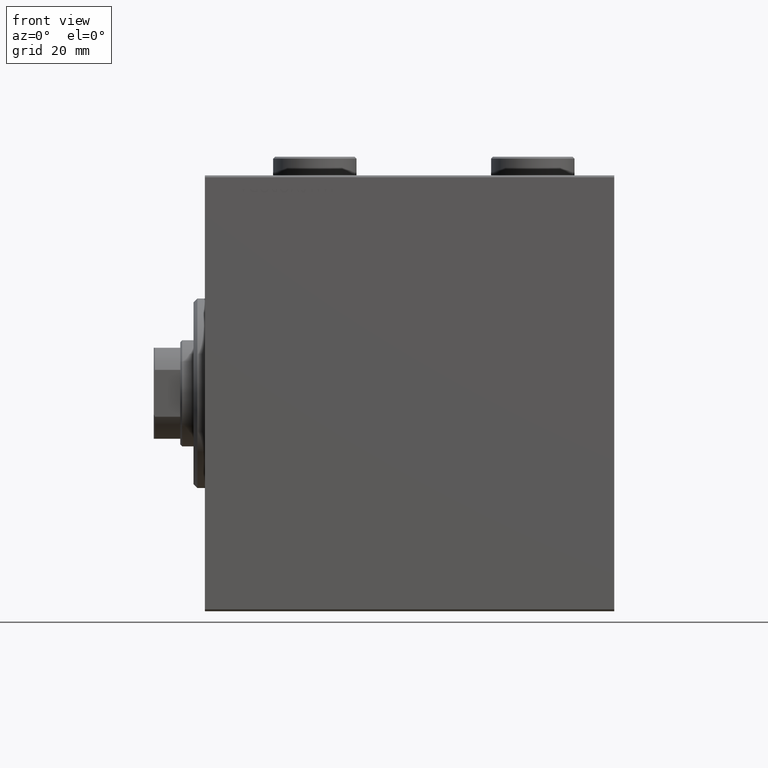
[diagram: clean part render]
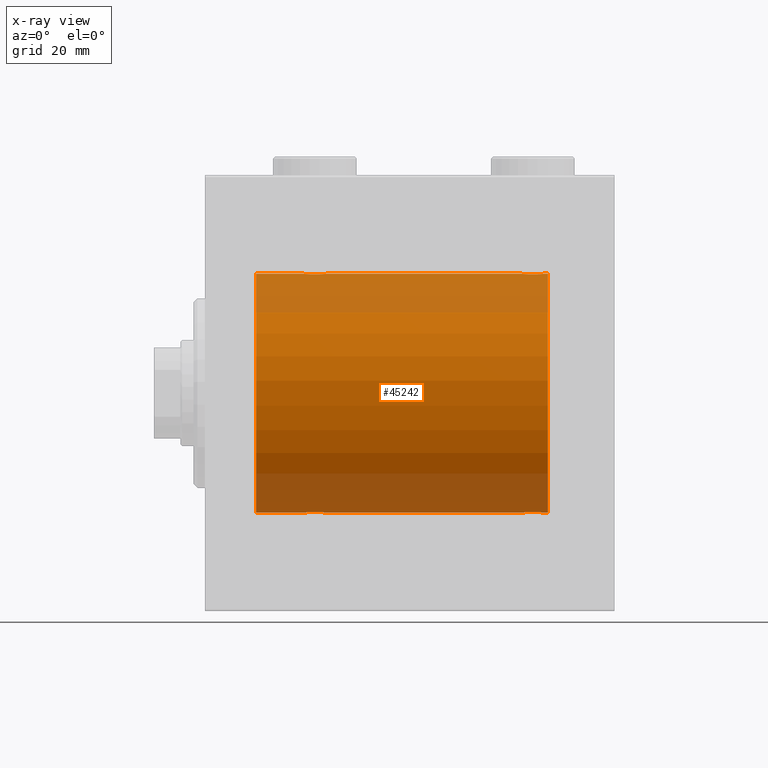
[diagram: x-ray — body ghosted, one internal face saturated and labeled with its STEP entity id]
A machine part, front view, then the same camera in x-ray: the body is ghosted and one INTERNAL B-rep face — a face not visible from any outside direction — is saturated and labeled: STEP entity #45242.
In plain terms, the highlighted cylindrical surface (partial cylindrical patch) has radius 31.5 mm, axis along (-1, -0, -0).
Its self-contained STEP definition (entity closure, byte-faithful):
#99 = CARTESIAN_POINT ( 'NONE',  ( 90.50000000000000000, 0.000000000000000000, 31.50000000000000000 ) ) ;
#245 = CARTESIAN_POINT ( 'NONE',  ( 85.53055544341479788, -2.845838211243349569, 31.37127560316188024 ) ) ;
#400 = DIRECTION ( 'NONE',  ( -1.000000000000000000, 0.000000000000000000, 0.000000000000000000 ) ) ;
#410 = CARTESIAN_POINT ( 'NONE',  ( 28.79953541025904684, -2.999845816735297266, 31.35683219171744796 ) ) ;
#607 = EDGE_CURVE ( 'NONE', #28324, #24776, #33156, .T. ) ;
#697 = CARTESIAN_POINT ( 'NONE',  ( 85.16760041900836598, -2.695056442718549494, 31.38458855656185875 ) ) ;
#1091 = CARTESIAN_POINT ( 'NONE',  ( 90.50000000000000000, 3.857637417314162689E-15, -31.50000000000000000 ) ) ;
#1279 = EDGE_CURVE ( 'NONE', #19880, #32705, #34566, .T. ) ;
#2487 = CARTESIAN_POINT ( 'NONE',  ( 26.61753127733370050, -1.833765390051043775, -31.44700610425689291 ) ) ;
#2577 = FACE_OUTER_BOUND ( 'NONE', #24533, .T. ) ;
#2593 = CARTESIAN_POINT ( 'NONE',  ( 84.11753127733369695, -1.833765390051052657, -31.44700610425689291 ) ) ;
#2927 = CARTESIAN_POINT ( 'NONE',  ( 31.60417781274729165, -1.502389880412994261, -31.46458023642406587 ) ) ;
#3104 = CARTESIAN_POINT ( 'NONE',  ( 89.50000000000000000, -2.415502498297804861E-16, 31.50000000000000000 ) ) ;
#3267 = CARTESIAN_POINT ( 'NONE',  ( 84.51539640075337445, -2.258226318633800300, 31.41925597582826413 ) ) ;
#3268 = CARTESIAN_POINT ( 'NONE',  ( 88.33043691486999194, -2.384935707362452195, -31.40977595730572247 ) ) ;
#3428 = CARTESIAN_POINT ( 'NONE',  ( 26.09580549261944427, -0.7775502215293862429, 31.49099686045558144 ) ) ;
#3619 = VERTEX_POINT ( 'NONE', #10336 ) ;
#3656 = ORIENTED_EDGE ( 'NONE', *, *, #37421, .T. ) ;
#3944 = CARTESIAN_POINT ( 'NONE',  ( 88.48143462873041187, -2.261012035264784892, 31.41905495618427935 ) ) ;
#4180 = DIRECTION ( 'NONE',  ( -1.000000000000000000, -0.000000000000000000, -0.000000000000000000 ) ) ;
#4393 = CARTESIAN_POINT ( 'NONE',  ( 84.99543714992996968, -2.602826974226406076, 31.39247100434484850 ) ) ;
#4624 = CARTESIAN_POINT ( 'NONE',  ( 86.29953541025901131, -2.999845816735307036, 31.35683219171744796 ) ) ;
#4912 = VECTOR ( 'NONE', #43780, 1000.000000000000000 ) ;
#5475 = CARTESIAN_POINT ( 'NONE',  ( 32.00000000000000000, 3.857637396137448068E-15, -31.50000000000000000 ) ) ;
#5568 = EDGE_CURVE ( 'NONE', #44420, #24776, #27446, .T. ) ;
#5670 = ORIENTED_EDGE ( 'NONE', *, *, #5568, .T. ) ;
#5723 = CARTESIAN_POINT ( 'NONE',  ( 31.69714238836700915, -1.328004386210300591, -31.47251238182141009 ) ) ;
#5952 = CARTESIAN_POINT ( 'NONE',  ( 27.17295774629732819, -2.387531469909772941, -31.40957782495775419 ) ) ;
#6060 = CARTESIAN_POINT ( 'NONE',  ( 89.50000000000001421, -0.1958045626907434222, -31.50000000000000711 ) ) ;
#6505 = CARTESIAN_POINT ( 'NONE',  ( 84.24175498096732895, -1.984587626072091160, -31.43772577203671048 ) ) ;
#6615 = CARTESIAN_POINT ( 'NONE',  ( 28.03484270189360217, -2.847307171789032143, -31.37114183851420179 ) ) ;
#6736 = VERTEX_POINT ( 'NONE', #30920 ) ;
#6952 = CARTESIAN_POINT ( 'NONE',  ( 83.49999999999998579, -0.1958045626907495562, 31.50000000000000000 ) ) ;
#6953 = CARTESIAN_POINT ( 'NONE',  ( 89.34660463742501690, -0.9669616078781998469, -31.48567319468627446 ) ) ;
#7115 = CARTESIAN_POINT ( 'NONE',  ( 26.01898490608483527, -0.3904857149112033743, 31.49817436802766935 ) ) ;
#7181 = CARTESIAN_POINT ( 'NONE',  ( 87.27469094434374597, -2.904836261170115730, 31.36579955910872997 ) ) ;
#7344 = CARTESIAN_POINT ( 'NONE',  ( 29.39114547339941552, -2.980809450819701834, 31.35867074198615967 ) ) ;
#7403 = CARTESIAN_POINT ( 'NONE',  ( 88.75824501903265684, -1.984587626072075617, 31.43772577203671759 ) ) ;
#7664 = ORIENTED_EDGE ( 'NONE', *, *, #8530, .T. ) ;
#7695 = EDGE_CURVE ( 'NONE', #44606, #19187, #30831, .T. ) ;
#8258 = LINE ( 'NONE', #1091, #27496 ) ;
#8530 = EDGE_CURVE ( 'NONE', #13277, #3619, #15373, .T. ) ;
#9269 = CARTESIAN_POINT ( 'NONE',  ( 31.38246872266631371, -1.833765390051040223, 31.44700610425690712 ) ) ;
#9742 = CARTESIAN_POINT ( 'NONE',  ( 84.23904537543867832, -1.981494824113344322, 31.43792153503156683 ) ) ;
#9743 = CARTESIAN_POINT ( 'NONE',  ( 88.76095462456133589, -1.981494824113334774, -31.43792153503157394 ) ) ;
#9865 = CARTESIAN_POINT ( 'NONE',  ( 31.98101509391517538, -0.3904857149112004322, -31.49817436802766224 ) ) ;
#9971 = CARTESIAN_POINT ( 'NONE',  ( 83.59580549261943361, -0.7775502215293907948, 31.49099686045558855 ) ) ;
#10087 = CARTESIAN_POINT ( 'NONE',  ( 28.60885452660059869, -2.980809450819697393, -31.35867074198615256 ) ) ;
#10336 = CARTESIAN_POINT ( 'NONE',  ( 13.49999999999999822, 0.000000000000000000, 31.50000000000000000 ) ) ;
#10418 = CARTESIAN_POINT ( 'NONE',  ( 87.27881912642318696, -2.903733559410696774, -31.36590199989303684 ) ) ;
#10578 = LINE ( 'NONE', #34610, #19980 ) ;
#10685 = DIRECTION ( 'NONE',  ( -1.000000000000000000, -0.000000000000000000, -0.000000000000000000 ) ) ;
#10812 = CARTESIAN_POINT ( 'NONE',  ( 27.49543714993000876, -2.602826974226395862, 31.39247100434485560 ) ) ;
#10873 = CARTESIAN_POINT ( 'NONE',  ( 87.82865414687509542, -2.696917666262913738, 31.38442820068732075 ) ) ;
#10900 = AXIS2_PLACEMENT_3D ( 'NONE', #35516, #400, #14507 ) ;
#10913 = ORIENTED_EDGE ( 'NONE', *, *, #607, .F. ) ;
#12892 = CARTESIAN_POINT ( 'NONE',  ( 29.39534111000096672, -2.980257240990050516, -31.35872356503798741 ) ) ;
#13010 = DIRECTION ( 'NONE',  ( 0.000000000000000000, 0.000000000000000000, 1.000000000000000000 ) ) ;
#13116 = CARTESIAN_POINT ( 'NONE',  ( 30.33239958099164824, -2.695056442718528178, -31.38458855656186230 ) ) ;
#13186 = CARTESIAN_POINT ( 'NONE',  ( 32.00000000000000000, -3.906065418435112189E-16, 31.50000000000000000 ) ) ;
#13277 = VERTEX_POINT ( 'NONE', #19376 ) ;
#13442 = CARTESIAN_POINT ( 'NONE',  ( 85.53484270189359506, -2.847307171789053903, -31.37114183851420179 ) ) ;
#13563 = CARTESIAN_POINT ( 'NONE',  ( 28.80417705560560648, -3.000152387858482150, -31.35680286115500337 ) ) ;
#13897 = CARTESIAN_POINT ( 'NONE',  ( 84.67295774629731397, -2.387531469909792481, -31.40957782495775419 ) ) ;
#14290 = CARTESIAN_POINT ( 'NONE',  ( 26.39582218725271900, -1.502389880413001144, 31.46458023642405166 ) ) ;
#14351 = CARTESIAN_POINT ( 'NONE',  ( 86.10465888999905815, -2.980257240990066947, 31.35872356503798031 ) ) ;
#14451 = DIRECTION ( 'NONE',  ( -1.000000000000000000, -0.000000000000000000, -0.000000000000000000 ) ) ;
#14507 = DIRECTION ( 'NONE',  ( 0.000000000000000000, 0.000000000000000000, 1.000000000000000000 ) ) ;
#14515 = CARTESIAN_POINT ( 'NONE',  ( 29.96515729810641204, -2.847307171789037028, 31.37114183851420890 ) ) ;
#14698 = CARTESIAN_POINT ( 'NONE',  ( 26.00000000000000355, -4.219962720039639025E-15, -31.50000000000000000 ) ) ;
#14799 = CARTESIAN_POINT ( 'NONE',  ( 86.69582294439439352, -3.000152387858496805, 31.35680286115500337 ) ) ;
#15373 = CIRCLE ( 'NONE', #44886, 31.50000000000000000 ) ;
#15608 = CARTESIAN_POINT ( 'NONE',  ( 90.50000000000000000, 0.000000000000000000, 31.50000000000000000 ) ) ;
#15975 = CARTESIAN_POINT ( 'NONE',  ( 30.98143462873041898, -2.261012035264782227, 31.41905495618429356 ) ) ;
#16580 = CARTESIAN_POINT ( 'NONE',  ( 26.30470357640990642, -1.331741824817663344, -31.47235367475394341 ) ) ;
#16672 = CARTESIAN_POINT ( 'NONE',  ( 90.50000000000000000, 0.000000000000000000, 0.000000000000000000 ) ) ;
#16685 = CARTESIAN_POINT ( 'NONE',  ( 83.49999999999998579, -0.3965830985361872840, -31.50000000000000711 ) ) ;
#16800 = CARTESIAN_POINT ( 'NONE',  ( 31.26095462456130747, -1.981494824113323894, -31.43792153503156683 ) ) ;
#16872 = B_SPLINE_CURVE_WITH_KNOTS ( 'NONE', 3,
 ( #17126, #6060, #30775, #16902, #6953, #41389, #20162, #27982, #9743, #30997, #3268, #45088, #45544, #37929, #10418, #38371, #41838, #31673, #27759, #20383, #13442, #27540, #31226, #13897, #38150, #6505, #2593, #24518, #41616, #42061, #16685, #38605 ),
 .UNSPECIFIED., .F., .F.,
 ( 4, 2, 2, 2, 2, 2, 2, 2, 2, 2, 2, 2, 2, 2, 2, 4 ),
 ( 0.009384682587134677775, 0.009971088165454078736, 0.01055749374377348143, 0.01114389932209288239, 0.01173030490041228509, 0.01231671047873168778, 0.01290311605705108874, 0.01348952163537048970, 0.01407592721368989067, 0.01466233279200929336, 0.01524873837032869606, 0.01583514394864809702, 0.01642154952696749798, 0.01700795510528689894, 0.01759436068360629990, 0.01876717184024510529 ),
 .UNSPECIFIED. ) ;
#16902 = CARTESIAN_POINT ( 'NONE',  ( 89.40419450738056639, -0.7775502215293851327, -31.49099686045559565 ) ) ;
#17016 = CARTESIAN_POINT ( 'NONE',  ( 31.38501442276926667, -1.830470878313871008, -31.44719957596828763 ) ) ;
#17126 = CARTESIAN_POINT ( 'NONE',  ( 89.50000000000000000, 3.857637396143758955E-15, -31.50000000000000000 ) ) ;
#17517 = CARTESIAN_POINT ( 'NONE',  ( 26.30285761163300151, -1.328004386210305698, 31.47251238182140298 ) ) ;
#17735 = CARTESIAN_POINT ( 'NONE',  ( 28.60465888999904749, -2.980257240990054513, 31.35872356503797320 ) ) ;
#17798 = CARTESIAN_POINT ( 'NONE',  ( 89.50000000000000000, -2.415502498297804861E-16, 31.50000000000000000 ) ) ;
#17911 = VECTOR ( 'NONE', #14451, 1000.000000000000000 ) ;
#18028 = CARTESIAN_POINT ( 'NONE',  ( 87.46515729810640494, -2.847307171789044133, 31.37114183851420890 ) ) ;
#18078 = EDGE_CURVE ( 'NONE', #32705, #13277, #10578, .T. ) ;
#18344 = B_SPLINE_CURVE_WITH_KNOTS ( 'NONE', 3,
 ( #20600, #6952, #44869, #9971, #27312, #34681, #41388, #20830, #9742, #3267, #34238, #4393, #697, #245, #32356, #14351, #4624, #14799, #38823, #7181, #18028, #10873, #42291, #21970, #3944, #7403, #18722, #21285, #28431, #35360, #28206, #17798 ),
 .UNSPECIFIED., .F., .F.,
 ( 4, 2, 2, 2, 2, 2, 2, 2, 2, 2, 2, 2, 2, 2, 2, 4 ),
 ( 0.009384682587134660428, 0.009971088165454063124, 0.01055749374377346582, 0.01114389932209286851, 0.01173030490041227121, 0.01231671047873167217, 0.01290311605705107313, 0.01348952163537047583, 0.01407592721368987679, 0.01466233279200927775, 0.01524873837032867871, 0.01583514394864807967, 0.01642154952696748410, 0.01700795510528688506, 0.01759436068360628602, 0.01876717184024507407 ),
 .UNSPECIFIED. ) ;
#18648 = DIRECTION ( 'NONE',  ( -1.000000000000000000, -0.000000000000000000, -0.000000000000000000 ) ) ;
#18722 = CARTESIAN_POINT ( 'NONE',  ( 88.88246872266633147, -1.833765390051044442, 31.44700610425689291 ) ) ;
#19187 = VERTEX_POINT ( 'NONE', #99 ) ;
#19376 = CARTESIAN_POINT ( 'NONE',  ( 13.49999999999999822, 3.857637417314162689E-15, -31.50000000000000000 ) ) ;
#19605 = VERTEX_POINT ( 'NONE', #41760 ) ;
#19880 = VERTEX_POINT ( 'NONE', #5475 ) ;
#19980 = VECTOR ( 'NONE', #41764, 1000.000000000000000 ) ;
#20048 = CARTESIAN_POINT ( 'NONE',  ( 27.01856537126959168, -2.261012035264780451, -31.41905495618428645 ) ) ;
#20146 = CYLINDRICAL_SURFACE ( 'NONE', #43212, 31.50000000000000000 ) ;
#20162 = CARTESIAN_POINT ( 'NONE',  ( 89.10417781274732363, -1.502389880412997147, -31.46458023642405877 ) ) ;
#20383 = CARTESIAN_POINT ( 'NONE',  ( 85.72530905565625403, -2.904836261170121947, -31.36579955910872286 ) ) ;
#20600 = CARTESIAN_POINT ( 'NONE',  ( 83.49999999999998579, -2.116947682205846230E-23, 31.50000000000000000 ) ) ;
#20717 = CARTESIAN_POINT ( 'NONE',  ( 26.39807859560847803, -1.506272792558329021, -31.46439306106696421 ) ) ;
#20830 = CARTESIAN_POINT ( 'NONE',  ( 84.11498557723071201, -1.830470878313887884, 31.44719957596828053 ) ) ;
#21226 = CARTESIAN_POINT ( 'NONE',  ( 27.66760041900836953, -2.695056442718533507, 31.38458855656185875 ) ) ;
#21285 = CARTESIAN_POINT ( 'NONE',  ( 89.10192140439151842, -1.506272792558327245, 31.46439306106695710 ) ) ;
#21782 = CARTESIAN_POINT ( 'NONE',  ( 90.50000000000000000, 0.000000000000000000, 31.50000000000000000 ) ) ;
#21970 = CARTESIAN_POINT ( 'NONE',  ( 88.32704225370268603, -2.387531469909779158, 31.40957782495775419 ) ) ;
#23362 = CARTESIAN_POINT ( 'NONE',  ( 30.50098156296146712, -2.604888532024788983, 31.39229907792058683 ) ) ;
#23438 = ORIENTED_EDGE ( 'NONE', *, *, #24515, .T. ) ;
#23519 = CARTESIAN_POINT ( 'NONE',  ( 28.22530905565627179, -2.904836261170101519, -31.36579955910872286 ) ) ;
#23811 = VECTOR ( 'NONE', #10685, 1000.000000000000000 ) ;
#23964 = CARTESIAN_POINT ( 'NONE',  ( 30.83043691487003102, -2.384935707362432211, -31.40977595730573668 ) ) ;
#24185 = CARTESIAN_POINT ( 'NONE',  ( 31.90419450738055218, -0.7775502215293830233, -31.49099686045559565 ) ) ;
#24297 = EDGE_CURVE ( 'NONE', #19605, #19880, #8258, .T. ) ;
#24515 = EDGE_CURVE ( 'NONE', #44606, #6736, #28074, .T. ) ;
#24518 = CARTESIAN_POINT ( 'NONE',  ( 83.89807859560842473, -1.506272792558335683, -31.46439306106695710 ) ) ;
#24533 = EDGE_LOOP ( 'NONE', ( #35050, #23438, #3656, #33054, #30335, #27647, #7664, #29610, #5670, #10913, #28390, #33235 ) ) ;
#24776 = VERTEX_POINT ( 'NONE', #26559 ) ;
#25307 = EDGE_CURVE ( 'NONE', #28324, #39577, #18344, .T. ) ;
#26559 = CARTESIAN_POINT ( 'NONE',  ( 32.00000000000000000, -3.906065418435112189E-16, 31.50000000000000000 ) ) ;
#26984 = CARTESIAN_POINT ( 'NONE',  ( 29.20046458974096026, -2.999845816735291493, -31.35683219171744796 ) ) ;
#27209 = CARTESIAN_POINT ( 'NONE',  ( 27.67134585312493655, -2.696917666262905300, -31.38442820068732786 ) ) ;
#27312 = CARTESIAN_POINT ( 'NONE',  ( 83.65339536257499731, -0.9669616078782070634, 31.48567319468626735 ) ) ;
#27446 = B_SPLINE_CURVE_WITH_KNOTS ( 'NONE', 3,
 ( #39843, #35076, #7115, #3428, #45475, #17517, #14290, #27919, #41994, #28372, #45704, #10812, #21226, #35300, #38986, #17735, #410, #42458, #7344, #35526, #14515, #45056, #23362, #30280, #15975, #34427, #9269, #30050, #44146, #41134, #33754, #13186 ),
 .UNSPECIFIED., .F., .F.,
 ( 4, 2, 2, 2, 2, 2, 2, 2, 2, 2, 2, 2, 2, 2, 2, 4 ),
 ( 0.009384682587134639611, 0.009971088165454038837, 0.01055749374377343980, 0.01114389932209284076, 0.01173030490041223999, 0.01231671047873163921, 0.01290311605705104017, 0.01348952163537044113, 0.01407592721368984036, 0.01466233279200923958, 0.01524873837032864055, 0.01583514394864804151, 0.01642154952696744247, 0.01700795510528683996, 0.01759436068360624092, 0.01876717184024503243 ),
 .UNSPECIFIED. ) ;
#27496 = VECTOR ( 'NONE', #18648, 1000.000000000000000 ) ;
#27540 = CARTESIAN_POINT ( 'NONE',  ( 85.17134585312489037, -2.696917666262924840, -31.38442820068731365 ) ) ;
#27647 = ORIENTED_EDGE ( 'NONE', *, *, #18078, .T. ) ;
#27759 = CARTESIAN_POINT ( 'NONE',  ( 86.10885452660059514, -2.980809450819716933, -31.35867074198615967 ) ) ;
#27919 = CARTESIAN_POINT ( 'NONE',  ( 26.61498557723073333, -1.830470878313877892, 31.44719957596828053 ) ) ;
#27982 = CARTESIAN_POINT ( 'NONE',  ( 88.88501442276927378, -1.830470878313876781, -31.44719957596828763 ) ) ;
#28074 = LINE ( 'NONE', #38020, #17911 ) ;
#28206 = CARTESIAN_POINT ( 'NONE',  ( 89.49999999999998579, -0.3965830985361750161, 31.50000000000000000 ) ) ;
#28324 = VERTEX_POINT ( 'NONE', #34621 ) ;
#28372 = CARTESIAN_POINT ( 'NONE',  ( 27.01539640075335669, -2.258226318633785201, 31.41925597582825702 ) ) ;
#28390 = ORIENTED_EDGE ( 'NONE', *, *, #25307, .T. ) ;
#28431 = CARTESIAN_POINT ( 'NONE',  ( 89.19529642359012200, -1.331741824817663122, 31.47235367475394341 ) ) ;
#28442 = LINE ( 'NONE', #36052, #45335 ) ;
#29610 = ORIENTED_EDGE ( 'NONE', *, *, #41223, .F. ) ;
#30050 = CARTESIAN_POINT ( 'NONE',  ( 31.60192140439154684, -1.506272792558323470, 31.46439306106697131 ) ) ;
#30280 = CARTESIAN_POINT ( 'NONE',  ( 30.82704225370267892, -2.387531469909770276, 31.40957782495776129 ) ) ;
#30335 = ORIENTED_EDGE ( 'NONE', *, *, #1279, .T. ) ;
#30759 = DIRECTION ( 'NONE',  ( 0.000000000000000000, 0.000000000000000000, 1.000000000000000000 ) ) ;
#30775 = CARTESIAN_POINT ( 'NONE',  ( 89.48101509391514696, -0.3904857149112013204, -31.49817436802766224 ) ) ;
#30831 = CIRCLE ( 'NONE', #10900, 31.50000000000000000 ) ;
#30920 = CARTESIAN_POINT ( 'NONE',  ( 89.50000000000000000, 3.857637396143758955E-15, -31.50000000000000000 ) ) ;
#30983 = DIRECTION ( 'NONE',  ( -1.000000000000000000, -0.000000000000000000, -0.000000000000000000 ) ) ;
#30997 = CARTESIAN_POINT ( 'NONE',  ( 88.48460359924666818, -2.258226318633792751, -31.41925597582826413 ) ) ;
#31113 = CARTESIAN_POINT ( 'NONE',  ( 30.50456285006998414, -2.602826974226390977, -31.39247100434485560 ) ) ;
#31226 = CARTESIAN_POINT ( 'NONE',  ( 84.99901843703854354, -2.604888532024810299, -31.39229907792057972 ) ) ;
#31340 = CARTESIAN_POINT ( 'NONE',  ( 26.00000000000001066, -0.3965830985361785688, -31.50000000000000711 ) ) ;
#31673 = CARTESIAN_POINT ( 'NONE',  ( 86.30417705560559227, -3.000152387858500802, -31.35680286115499626 ) ) ;
#31790 = CARTESIAN_POINT ( 'NONE',  ( 26.07979337049960122, -0.7905881588836181084, -31.49214662150069799 ) ) ;
#31894 = CARTESIAN_POINT ( 'NONE',  ( 26.00000000000000355, -4.219962720039639025E-15, -31.50000000000000000 ) ) ;
#32356 = CARTESIAN_POINT ( 'NONE',  ( 85.72118087357682725, -2.903733559410697662, 31.36590199989305106 ) ) ;
#32705 = VERTEX_POINT ( 'NONE', #31894 ) ;
#33054 = ORIENTED_EDGE ( 'NONE', *, *, #24297, .T. ) ;
#33156 = LINE ( 'NONE', #15608, #4912 ) ;
#33235 = ORIENTED_EDGE ( 'NONE', *, *, #35479, .F. ) ;
#33754 = CARTESIAN_POINT ( 'NONE',  ( 32.00000000000001421, -0.3965830985361748495, 31.50000000000001421 ) ) ;
#34132 = CARTESIAN_POINT ( 'NONE',  ( 26.74175498096733961, -1.984587626072072952, -31.43772577203672469 ) ) ;
#34238 = CARTESIAN_POINT ( 'NONE',  ( 84.66956308512997964, -2.384935707362449087, 31.40977595730572958 ) ) ;
#34427 = CARTESIAN_POINT ( 'NONE',  ( 31.25824501903266039, -1.984587626072074285, 31.43772577203672469 ) ) ;
#34566 = B_SPLINE_CURVE_WITH_KNOTS ( 'NONE', 3,
 ( #45206, #37371, #9865, #24185, #44763, #5723, #2927, #17016, #16800, #44531, #23964, #31113, #13116, #38261, #44296, #12892, #26984, #13563, #10087, #23519, #6615, #27209, #41284, #5952, #20048, #34132, #2487, #20717, #16580, #31790, #31340, #14698 ),
 .UNSPECIFIED., .F., .F.,
 ( 4, 2, 2, 2, 2, 2, 2, 2, 2, 2, 2, 2, 2, 2, 2, 4 ),
 ( 0.009384682587134662163, 0.009971088165454068328, 0.01055749374377347449, 0.01114389932209287892, 0.01173030490041228509, 0.01231671047873168431, 0.01290311605705108181, 0.01348952163537047930, 0.01407592721368987852, 0.01466233279200927775, 0.01524873837032867524, 0.01583514394864807273, 0.01642154952696747369, 0.01700795510528686771, 0.01759436068360626521, 0.01876717184024506366 ),
 .UNSPECIFIED. ) ;
#34610 = CARTESIAN_POINT ( 'NONE',  ( 90.50000000000000000, 3.857637417314162689E-15, -31.50000000000000000 ) ) ;
#34621 = CARTESIAN_POINT ( 'NONE',  ( 83.49999999999998579, -2.116947682205846230E-23, 31.50000000000000000 ) ) ;
#34681 = CARTESIAN_POINT ( 'NONE',  ( 83.80285761163298730, -1.328004386210315024, 31.47251238182141719 ) ) ;
#35050 = ORIENTED_EDGE ( 'NONE', *, *, #7695, .F. ) ;
#35076 = CARTESIAN_POINT ( 'NONE',  ( 26.00000000000001066, -0.1958045626907463088, 31.50000000000000711 ) ) ;
#35300 = CARTESIAN_POINT ( 'NONE',  ( 28.03055544341478722, -2.845838211243333138, 31.37127560316186603 ) ) ;
#35360 = CARTESIAN_POINT ( 'NONE',  ( 89.42020662950039878, -0.7905881588836165541, 31.49214662150069088 ) ) ;
#35479 = EDGE_CURVE ( 'NONE', #19187, #39577, #42561, .T. ) ;
#35516 = CARTESIAN_POINT ( 'NONE',  ( 90.50000000000000000, 0.000000000000000000, 0.000000000000000000 ) ) ;
#35526 = CARTESIAN_POINT ( 'NONE',  ( 29.77469094434372821, -2.904836261170106404, 31.36579955910873707 ) ) ;
#36052 = CARTESIAN_POINT ( 'NONE',  ( 90.50000000000000000, 0.000000000000000000, 31.50000000000000000 ) ) ;
#36894 = CARTESIAN_POINT ( 'NONE',  ( 90.50000000000000000, 3.857637417314162689E-15, -31.50000000000000000 ) ) ;
#37371 = CARTESIAN_POINT ( 'NONE',  ( 32.00000000000001421, -0.1958045626907420345, -31.50000000000000711 ) ) ;
#37421 = EDGE_CURVE ( 'NONE', #6736, #19605, #16872, .T. ) ;
#37929 = CARTESIAN_POINT ( 'NONE',  ( 87.46944455658521633, -2.845838211243347793, -31.37127560316186603 ) ) ;
#38020 = CARTESIAN_POINT ( 'NONE',  ( 90.50000000000000000, 3.857637417314162689E-15, -31.50000000000000000 ) ) ;
#38150 = CARTESIAN_POINT ( 'NONE',  ( 84.51856537126954549, -2.261012035264799103, -31.41905495618427224 ) ) ;
#38261 = CARTESIAN_POINT ( 'NONE',  ( 29.96944455658522699, -2.845838211243328697, -31.37127560316187314 ) ) ;
#38371 = CARTESIAN_POINT ( 'NONE',  ( 86.89534111000095606, -2.980257240990069167, -31.35872356503797320 ) ) ;
#38605 = CARTESIAN_POINT ( 'NONE',  ( 83.49999999999998579, -1.354660151018645615E-14, -31.50000000000000000 ) ) ;
#38823 = CARTESIAN_POINT ( 'NONE',  ( 86.89114547339943329, -2.980809450819711159, 31.35867074198615967 ) ) ;
#38986 = CARTESIAN_POINT ( 'NONE',  ( 28.22118087357680238, -2.903733559410683895, 31.36590199989303684 ) ) ;
#39577 = VERTEX_POINT ( 'NONE', #3104 ) ;
#39843 = CARTESIAN_POINT ( 'NONE',  ( 26.00000000000000355, -2.117263226567934635E-23, 31.50000000000000000 ) ) ;
#41134 = CARTESIAN_POINT ( 'NONE',  ( 31.92020662950040943, -0.7905881588836116691, 31.49214662150068378 ) ) ;
#41223 = EDGE_CURVE ( 'NONE', #44420, #3619, #28442, .T. ) ;
#41284 = CARTESIAN_POINT ( 'NONE',  ( 27.49901843703855775, -2.604888532024790759, -31.39229907792058683 ) ) ;
#41388 = CARTESIAN_POINT ( 'NONE',  ( 83.89582218725269058, -1.502389880413010026, 31.46458023642405877 ) ) ;
#41389 = CARTESIAN_POINT ( 'NONE',  ( 89.19714238836702691, -1.328004386210309251, -31.47251238182141719 ) ) ;
#41616 = CARTESIAN_POINT ( 'NONE',  ( 83.80470357640989221, -1.331741824817675113, -31.47235367475394341 ) ) ;
#41631 = DIRECTION ( 'NONE',  ( -1.000000000000000000, 0.000000000000000000, 0.000000000000000000 ) ) ;
#41760 = CARTESIAN_POINT ( 'NONE',  ( 83.49999999999998579, -1.354660151018645615E-14, -31.50000000000000000 ) ) ;
#41764 = DIRECTION ( 'NONE',  ( -1.000000000000000000, -0.000000000000000000, -0.000000000000000000 ) ) ;
#41838 = CARTESIAN_POINT ( 'NONE',  ( 86.70046458974097447, -2.999845816735310589, -31.35683219171744796 ) ) ;
#41994 = CARTESIAN_POINT ( 'NONE',  ( 26.73904537543869608, -1.981494824113328779, 31.43792153503155973 ) ) ;
#42061 = CARTESIAN_POINT ( 'NONE',  ( 83.57979337049955859, -0.7905881588836273233, -31.49214662150069088 ) ) ;
#42291 = CARTESIAN_POINT ( 'NONE',  ( 88.00098156296147067, -2.604888532024798309, 31.39229907792057972 ) ) ;
#42444 = CARTESIAN_POINT ( 'NONE',  ( 26.00000000000000355, -2.117263226567934635E-23, 31.50000000000000000 ) ) ;
#42458 = CARTESIAN_POINT ( 'NONE',  ( 29.19582294439440417, -3.000152387858486147, 31.35680286115499626 ) ) ;
#42561 = LINE ( 'NONE', #21782, #23811 ) ;
#43212 = AXIS2_PLACEMENT_3D ( 'NONE', #16672, #30983, #30759 ) ;
#43780 = DIRECTION ( 'NONE',  ( -1.000000000000000000, -0.000000000000000000, -0.000000000000000000 ) ) ;
#44146 = CARTESIAN_POINT ( 'NONE',  ( 31.69529642359010424, -1.331741824817659348, 31.47235367475393630 ) ) ;
#44296 = CARTESIAN_POINT ( 'NONE',  ( 29.77881912642320827, -2.903733559410676790, -31.36590199989303684 ) ) ;
#44420 = VERTEX_POINT ( 'NONE', #42444 ) ;
#44531 = CARTESIAN_POINT ( 'NONE',  ( 30.98460359924664331, -2.258226318633780316, -31.41925597582826413 ) ) ;
#44606 = VERTEX_POINT ( 'NONE', #36894 ) ;
#44763 = CARTESIAN_POINT ( 'NONE',  ( 31.84660463742499559, -0.9669616078781936297, -31.48567319468626735 ) ) ;
#44869 = CARTESIAN_POINT ( 'NONE',  ( 83.51898490608482462, -0.3904857149112073711, 31.49817436802766935 ) ) ;
#44886 = AXIS2_PLACEMENT_3D ( 'NONE', #44887, #41631, #13010 ) ;
#44887 = CARTESIAN_POINT ( 'NONE',  ( 13.49999999999999822, 0.000000000000000000, 0.000000000000000000 ) ) ;
#45056 = CARTESIAN_POINT ( 'NONE',  ( 30.32865414687508832, -2.696917666262907520, 31.38442820068731365 ) ) ;
#45088 = CARTESIAN_POINT ( 'NONE',  ( 88.00456285007000190, -2.602826974226410961, -31.39247100434486271 ) ) ;
#45206 = CARTESIAN_POINT ( 'NONE',  ( 32.00000000000000000, 3.857637396137448068E-15, -31.50000000000000000 ) ) ;
#45242 = ADVANCED_FACE ( 'NONE', ( #2577 ), #20146, .F. ) ;
#45335 = VECTOR ( 'NONE', #4180, 1000.000000000000000 ) ;
#45475 = CARTESIAN_POINT ( 'NONE',  ( 26.15339536257501507, -0.9669616078781987367, 31.48567319468626735 ) ) ;
#45544 = CARTESIAN_POINT ( 'NONE',  ( 87.83239958099163402, -2.695056442718546830, -31.38458855656186230 ) ) ;
#45704 = CARTESIAN_POINT ( 'NONE',  ( 27.16956308512997964, -2.384935707362437096, 31.40977595730572958 ) ) ;